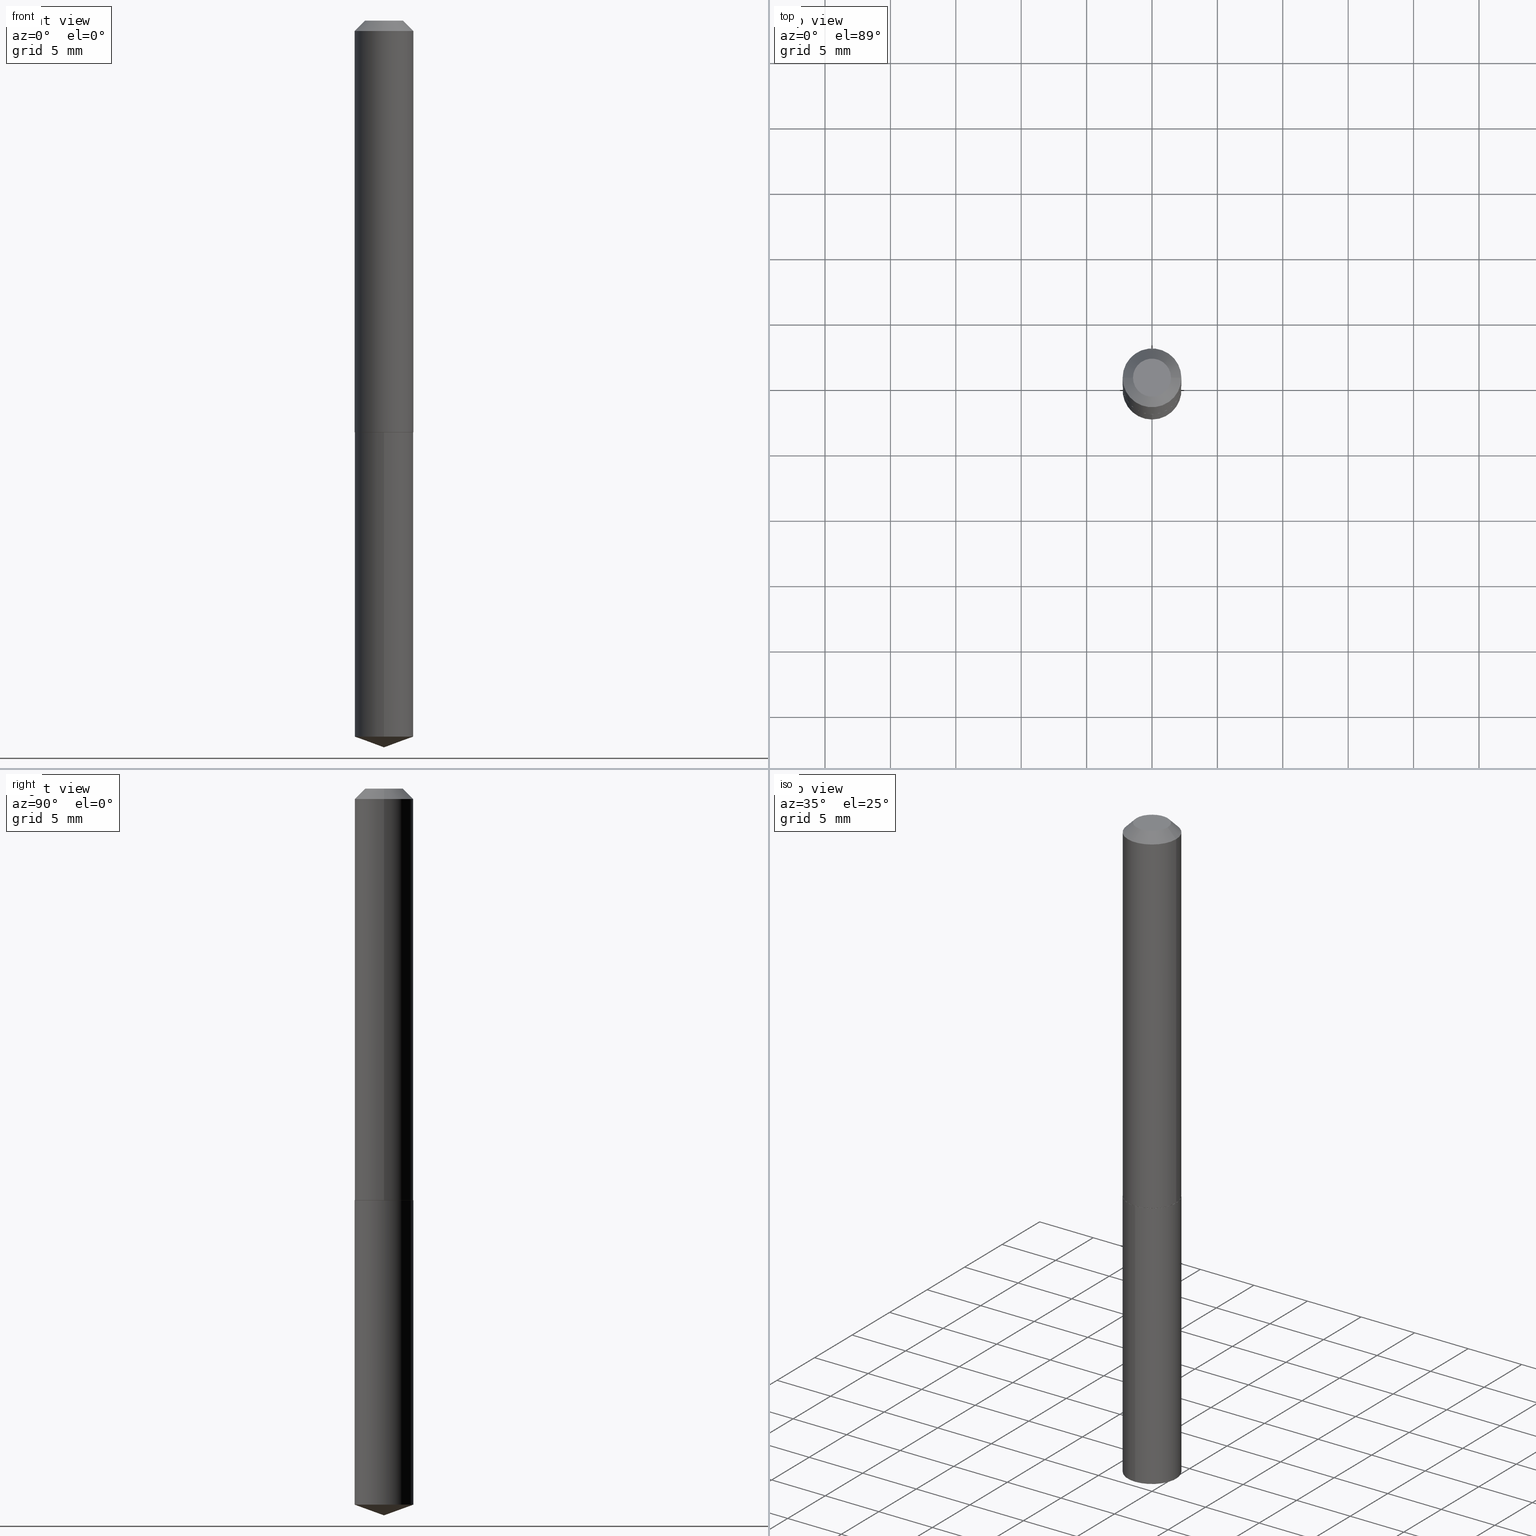
[diagram: canonical four-view strip — front | top / right | iso, engineering-drawing reading convention]
A machine part, canonical four-view strip (front | top / right | iso — engineering-drawing reading convention). The complete STEP part file that produces these views, byte-faithful:
ISO-10303-21;
HEADER;
FILE_DESCRIPTION (( 'STEP AP203' ),
    '1' );
FILE_NAME ('56225.STEP',
    '2024-04-22T21:07:29',
    ( '' ),
    ( '' ),
    'SwSTEP 2.0',
    'SolidWorks 2023',
    '' );
FILE_SCHEMA (( 'CONFIG_CONTROL_DESIGN' ));
ENDSEC;

DATA;
#1 = DATE_AND_TIME ( #169, #360 ) ;
#2 = CARTESIAN_POINT ( 'NONE',  ( 0.08849999999999999534, -7.162628646416295666E-16, -0.03125000000000020817 ) ) ;
#3 = EDGE_CURVE ( 'NONE', #74, #156, #312, .T. ) ;
#4 = APPROVAL_PERSON_ORGANIZATION ( #43, #199, #195 ) ;
#5 = APPLICATION_CONTEXT ( 'configuration controlled 3d designs of mechanical parts and assemblies' ) ;
#6 = CARTESIAN_POINT ( 'NONE',  ( 7.642090019328602662E-31, -1.091087918388490267E-16, -0.03125000000000020817 ) ) ;
#7 = CARTESIAN_POINT ( 'NONE',  ( 3.031158585266477520E-29, -4.327691119496080108E-15, -1.239500000000000268 ) ) ;
#8 = FACE_OUTER_BOUND ( 'NONE', #64, .T. ) ;
#9 = PLANE ( 'NONE',  #383 ) ;
#10 = AXIS2_PLACEMENT_3D ( 'NONE', #131, #41, #226 ) ;
#11 = FACE_OUTER_BOUND ( 'NONE', #44, .T. ) ;
#12 = EDGE_LOOP ( 'NONE', ( #188, #285, #279 ) ) ;
#13 = LINE ( 'NONE', #157, #26 ) ;
#14 = ADVANCED_FACE ( 'NONE', ( #109 ), #146, .T. ) ;
#15 = ORIENTED_EDGE ( 'NONE', *, *, #354, .T. ) ;
#16 =( NAMED_UNIT ( * ) SI_UNIT ( $, .STERADIAN. ) SOLID_ANGLE_UNIT ( ) );
#17 = AXIS2_PLACEMENT_3D ( 'NONE', #335, #380, #21 ) ;
#18 = ORIENTED_EDGE ( 'NONE', *, *, #238, .T. ) ;
#19 = COORDINATED_UNIVERSAL_TIME_OFFSET ( 5, 0, .BEHIND. ) ;
#20 = VERTEX_POINT ( 'NONE', #22 ) ;
#21 = DIRECTION ( 'NONE',  ( -6.982962677686269077E-15, -1.000000000000000000, 3.475157955500676827E-15 ) ) ;
#22 = CARTESIAN_POINT ( 'NONE',  ( -0.08800000000000013367, -3.699764284853079399E-15, -1.239500000000000046 ) ) ;
#23 = APPROVAL_STATUS ( 'not_yet_approved' ) ;
#24 = CIRCLE ( 'NONE', #288, 0.08849999999999999534 ) ;
#25 = CARTESIAN_POINT ( 'NONE',  ( 3.031158585266477520E-29, -4.327691119496080108E-15, -1.239500000000000268 ) ) ;
#26 = VECTOR ( 'NONE', #365, 39.37007874015748143 ) ;
#27 = DIRECTION ( 'NONE',  ( -6.982962677686269077E-15, -1.000000000000000000, 3.475157955500676827E-15 ) ) ;
#28 = LINE ( 'NONE', #2, #54 ) ;
#29 = PLANE ( 'NONE',  #351 ) ;
#30 = VECTOR ( 'NONE', #267, 39.37007874015748854 ) ;
#31 = CARTESIAN_POINT ( 'NONE',  ( 3.031158585266477520E-29, -4.327691119496080108E-15, -1.239500000000000268 ) ) ;
#32 = CARTESIAN_POINT ( 'NONE',  ( 0.08850000000000013411, -4.943937575801893744E-15, -1.239000000000000323 ) ) ;
#33 = EDGE_CURVE ( 'NONE', #156, #280, #65, .T. ) ;
#34 = CARTESIAN_POINT ( 'NONE',  ( 6.288303211477413864E-16, 0.08849999999999247358, -2.155288634267441772 ) ) ;
#35 = CLOSED_SHELL ( 'NONE', ( #108, #14, #381, #249, #389 ) ) ;
#36 = LINE ( 'NONE', #302, #207 ) ;
#37 = ORIENTED_EDGE ( 'NONE', *, *, #189, .T. ) ;
#38 = DIRECTION ( 'NONE',  ( -6.982962677686266711E-15, -1.000000000000000000, 3.086833891146060475E-15 ) ) ;
#39 = VERTEX_POINT ( 'NONE', #142 ) ;
#40 = ORIENTED_EDGE ( 'NONE', *, *, #51, .F. ) ;
#41 = DIRECTION ( 'NONE',  ( 2.445375697878233783E-29, -3.491614675238025661E-15, -1.000000000000000000 ) ) ;
#42 = DIRECTION ( 'NONE',  ( -6.561838499445211896E-15, -0.9396926207859088720, 0.3420201433256673251 ) ) ;
#43 = PERSON_AND_ORGANIZATION ( #174, #167 ) ;
#44 = EDGE_LOOP ( 'NONE', ( #227, #91 ) ) ;
#45 = EDGE_CURVE ( 'NONE', #215, #39, #24, .T. ) ;
#46 = APPROVAL_ROLE ( '' ) ;
#47 = DIRECTION ( 'NONE',  ( 1.000000000000000000, -6.982962677686261977E-15, 0.000000000000000000 ) ) ;
#48 = CARTESIAN_POINT ( 'NONE',  ( 0.000000000000000000, 0.000000000000000000, 0.000000000000000000 ) ) ;
#49 = AXIS2_PLACEMENT_3D ( 'NONE', #209, #78, #104 ) ;
#50 = PERSON_AND_ORGANIZATION ( #174, #167 ) ;
#51 = EDGE_CURVE ( 'NONE', #122, #20, #258, .T. ) ;
#52 = DATE_TIME_ROLE ( 'classification_date' ) ;
#53 = CARTESIAN_POINT ( 'NONE',  ( -0.08850000000000013411, -3.697115057678968987E-15, -1.239000000000000323 ) ) ;
#54 = VECTOR ( 'NONE', #210, 39.37007874015748143 ) ;
#55 = CC_DESIGN_APPROVAL ( #149, ( #320 ) ) ;
#56 = DIRECTION ( 'NONE',  ( -1.000000000000000000, 6.982962677686266711E-15, 0.000000000000000000 ) ) ;
#57 = FACE_OUTER_BOUND ( 'NONE', #314, .T. ) ;
#58 = DIRECTION ( 'NONE',  ( 1.000000000000000000, -6.982962677686266711E-15, 0.000000000000000000 ) ) ;
#59 = CONICAL_SURFACE ( 'NONE', #103, 0.08849999999999999534, 0.7853981633974449483 ) ;
#60 = FACE_OUTER_BOUND ( 'NONE', #162, .T. ) ;
#61 = CC_DESIGN_DATE_AND_TIME_ASSIGNMENT ( #359, #52, ( #153 ) ) ;
#62 = DIRECTION ( 'NONE',  ( -2.445468806185136597E-29, 3.491481338843145583E-15, 1.000000000000000000 ) ) ;
#63 = DIRECTION ( 'NONE',  ( 6.676917655467978384E-15, 0.9396926207859112035, 0.3420201433256607193 ) ) ;
#64 = EDGE_LOOP ( 'NONE', ( #375, #118, #18, #69 ) ) ;
#65 = CIRCLE ( 'NONE', #325, 0.08849999999999999534 ) ;
#66 = CARTESIAN_POINT ( 'NONE',  ( 5.349492178580865092E-29, -7.637576561160272770E-15, -2.187500000000000000 ) ) ;
#67 = ORIENTED_EDGE ( 'NONE', *, *, #304, .F. ) ;
#68 = CARTESIAN_POINT ( 'NONE',  ( -0.08850000000000013411, -3.697115057678968987E-15, -1.239000000000000323 ) ) ;
#69 = ORIENTED_EDGE ( 'NONE', *, *, #182, .F. ) ;
#70 =( LENGTH_UNIT ( ) NAMED_UNIT ( * ) SI_UNIT ( $, .METRE. ) );
#71 = EDGE_LOOP ( 'NONE', ( #284, #253 ) ) ;
#72 = AXIS2_PLACEMENT_3D ( 'NONE', #349, #132, #239 ) ;
#73 = ADVANCED_FACE ( 'NONE', ( #350 ), #357, .T. ) ;
#74 = VERTEX_POINT ( 'NONE', #140 ) ;
#75 = APPROVAL_DATE_TIME ( #137, #199 ) ;
#76 = DIRECTION ( 'NONE',  ( -2.445468806185136597E-29, 3.491481338843145583E-15, 1.000000000000000000 ) ) ;
#77 = EDGE_CURVE ( 'NONE', #342, #185, #252, .T. ) ;
#78 = DIRECTION ( 'NONE',  ( -2.445468806185136597E-29, 3.491481338843145583E-15, 1.000000000000000000 ) ) ;
#79 = CARTESIAN_POINT ( 'NONE',  ( 5.270605855897176758E-29, -7.525272154320466255E-15, -2.155288634267441772 ) ) ;
#80 = ADVANCED_FACE ( 'NONE', ( #363 ), #29, .F. ) ;
#81 = CIRCLE ( 'NONE', #358, 0.08849999999999999534 ) ;
#82 = ORIENTED_EDGE ( 'NONE', *, *, #99, .T. ) ;
#83 = AXIS2_PLACEMENT_3D ( 'NONE', #330, #76, #165 ) ;
#84 = FACE_OUTER_BOUND ( 'NONE', #256, .T. ) ;
#85 = DIRECTION ( 'NONE',  ( -2.445375697878234343E-29, 3.491614675238025267E-15, 1.000000000000000000 ) ) ;
#86 = CARTESIAN_POINT ( 'NONE',  ( -0.05724999999999999534, 4.543290092169620810E-16, -1.836970198750900287E-19 ) ) ;
#87 = LOCAL_TIME ( 17, 7, 29.00000000000000000, #346 ) ;
#88 = FACE_OUTER_BOUND ( 'NONE', #345, .T. ) ;
#89 = EDGE_LOOP ( 'NONE', ( #40, #67 ) ) ;
#90 = CARTESIAN_POINT ( 'NONE',  ( 7.642090019328602662E-31, -1.091087918388490267E-16, -0.03125000000000020817 ) ) ;
#91 = ORIENTED_EDGE ( 'NONE', *, *, #77, .T. ) ;
#92 = CARTESIAN_POINT ( 'NONE',  ( 3.031158585266476960E-29, -4.327691119496078530E-15, -1.239500000000000046 ) ) ;
#93 = ORIENTED_EDGE ( 'NONE', *, *, #51, .T. ) ;
#94 = LOCAL_TIME ( 17, 7, 29.00000000000000000, #283 ) ;
#95 = DIRECTION ( 'NONE',  ( -2.445375697878234343E-29, 3.491614675238025267E-15, 1.000000000000000000 ) ) ;
#96 = ORIENTED_EDGE ( 'NONE', *, *, #99, .F. ) ;
#97 = PERSON_AND_ORGANIZATION ( #174, #167 ) ;
#98 = EDGE_LOOP ( 'NONE', ( #370, #250, #37, #245 ) ) ;
#99 = EDGE_CURVE ( 'NONE', #218, #247, #123, .T. ) ;
#100 = DATE_AND_TIME ( #197, #87 ) ;
#101 = ORIENTED_EDGE ( 'NONE', *, *, #304, .T. ) ;
#102 = PLANE ( 'NONE',  #10 ) ;
#103 = AXIS2_PLACEMENT_3D ( 'NONE', #221, #187, #273 ) ;
#104 = DIRECTION ( 'NONE',  ( 1.000000000000000000, -6.982962677686261977E-15, 0.000000000000000000 ) ) ;
#105 = PERSON_AND_ORGANIZATION_ROLE ( 'design_supplier' ) ;
#106 = CARTESIAN_POINT ( 'NONE',  ( 3.031158585266476960E-29, -4.327691119496078530E-15, -1.239500000000000046 ) ) ;
#107 = PERSON_AND_ORGANIZATION_ROLE ( 'design_owner' ) ;
#108 = ADVANCED_FACE ( 'NONE', ( #84 ), #382, .T. ) ;
#109 = FACE_OUTER_BOUND ( 'NONE', #12, .T. ) ;
#110 = CARTESIAN_POINT ( 'NONE',  ( 6.288303211477413864E-16, 0.08849999999999566547, -1.239500000000000490 ) ) ;
#111 = DIRECTION ( 'NONE',  ( 1.000000000000000000, -6.982962677686266711E-15, 0.000000000000000000 ) ) ;
#112 = EDGE_CURVE ( 'NONE', #280, #160, #230, .T. ) ;
#113 = DIRECTION ( 'NONE',  ( -6.982962677686266711E-15, -1.000000000000000000, 3.086833891146060475E-15 ) ) ;
#114 = CARTESIAN_POINT ( 'NONE',  ( 0.05724999999999999534, -5.545131875070248356E-16, -1.836970198687676100E-19 ) ) ;
#115 = ORIENTED_EDGE ( 'NONE', *, *, #127, .F. ) ;
#116 = VECTOR ( 'NONE', #341, 39.37007874015748143 ) ;
#117 = DIRECTION ( 'NONE',  ( -2.445375697878234343E-29, 3.491614675238025267E-15, 1.000000000000000000 ) ) ;
#118 = ORIENTED_EDGE ( 'NONE', *, *, #234, .T. ) ;
#119 = CYLINDRICAL_SURFACE ( 'NONE', #228, 0.08849999999999999534 ) ;
#120 = EDGE_LOOP ( 'NONE', ( #299, #115, #143, #372 ) ) ;
#121 = FACE_OUTER_BOUND ( 'NONE', #337, .T. ) ;
#122 = VERTEX_POINT ( 'NONE', #176 ) ;
#123 = CIRCLE ( 'NONE', #49, 0.08850000000000013411 ) ;
#124 = AXIS2_PLACEMENT_3D ( 'NONE', #205, #328, #323 ) ;
#125 = DATE_TIME_ROLE ( 'creation_date' ) ;
#126 = CARTESIAN_POINT ( 'NONE',  ( 5.349259339108637853E-29, -7.637907102083180518E-15, -2.187500000000000000 ) ) ;
#127 = EDGE_CURVE ( 'NONE', #185, #342, #259, .T. ) ;
#128 = CC_DESIGN_DATE_AND_TIME_ASSIGNMENT ( #311, #125, ( #292 ) ) ;
#129 = APPLICATION_PROTOCOL_DEFINITION ( 'international standard', 'config_control_design', 1994, #5 ) ;
#130 = ORIENTED_EDGE ( 'NONE', *, *, #33, .T. ) ;
#131 = CARTESIAN_POINT ( 'NONE',  ( 3.031158585266477520E-29, -4.327691119496080108E-15, -1.239500000000000268 ) ) ;
#132 = DIRECTION ( 'NONE',  ( -2.445468806185136597E-29, 3.491481338843145583E-15, 1.000000000000000000 ) ) ;
#133 = AXIS2_PLACEMENT_3D ( 'NONE', #171, #265, #361 ) ;
#134 = PERSON_AND_ORGANIZATION ( #174, #167 ) ;
#135 = AXIS2_PLACEMENT_3D ( 'NONE', #7, #95, #113 ) ;
#136 = DIRECTION ( 'NONE',  ( -2.445375697878234343E-29, 3.491614675238025267E-15, 1.000000000000000000 ) ) ;
#137 = DATE_AND_TIME ( #286, #367 ) ;
#138 = EDGE_CURVE ( 'NONE', #20, #247, #173, .T. ) ;
#139 = AXIS2_PLACEMENT_3D ( 'NONE', #48, #387, #290 ) ;
#140 = CARTESIAN_POINT ( 'NONE',  ( 5.349259339108637853E-29, -7.637907102083180518E-15, -2.187500000000000000 ) ) ;
#141 = APPROVAL_DATE_TIME ( #1, #155 ) ;
#142 = CARTESIAN_POINT ( 'NONE',  ( 0.08849999999999999534, -7.271009888140835507E-16, -0.03125000000000020817 ) ) ;
#143 = ORIENTED_EDGE ( 'NONE', *, *, #263, .T. ) ;
#144 = CARTESIAN_POINT ( 'NONE',  ( 3.029935850863385279E-29, -4.325945378826658604E-15, -1.239000000000000323 ) ) ;
#145 = ADVANCED_FACE ( 'NONE', ( #206 ), #194, .T. ) ;
#146 = CONICAL_SURFACE ( 'NONE', #184, 108.1684023407348150, 1.221730476396035714 ) ;
#147 = ORIENTED_EDGE ( 'NONE', *, *, #238, .F. ) ;
#148 = DIRECTION ( 'NONE',  ( 1.000000000000000000, -6.982962677686266711E-15, 0.000000000000000000 ) ) ;
#149 = APPROVAL ( #23, 'UNSPECIFIED' ) ;
#150 = CARTESIAN_POINT ( 'NONE',  ( 0.000000000000000000, 0.000000000000000000, 0.000000000000000000 ) ) ;
#151 = CARTESIAN_POINT ( 'NONE',  ( 3.031158585266477520E-29, -4.327691119496080108E-15, -1.239500000000000268 ) ) ;
#152 = AXIS2_PLACEMENT_3D ( 'NONE', #106, #237, #111 ) ;
#153 = SECURITY_CLASSIFICATION ( '', '', #223 ) ;
#154 = LINE ( 'NONE', #246, #116 ) ;
#155 = APPROVAL ( #204, 'UNSPECIFIED' ) ;
#156 = VERTEX_POINT ( 'NONE', #178 ) ;
#157 = CARTESIAN_POINT ( 'NONE',  ( 0.08850000000000006473, -6.179921969752350417E-16, 4.315416446579406428E-30 ) ) ;
#158 = VERTEX_POINT ( 'NONE', #297 ) ;
#159 = LENGTH_MEASURE_WITH_UNIT ( LENGTH_MEASURE( 0.02539999999999999897 ), #70 );
#160 = VERTEX_POINT ( 'NONE', #110 ) ;
#161 = PERSON_AND_ORGANIZATION ( #174, #167 ) ;
#162 = EDGE_LOOP ( 'NONE', ( #82, #15, #379, #225 ) ) ;
#163 = ORIENTED_EDGE ( 'NONE', *, *, #138, .T. ) ;
#164 = EDGE_CURVE ( 'NONE', #342, #39, #28, .T. ) ;
#165 = DIRECTION ( 'NONE',  ( 1.000000000000000000, -6.982962677686266711E-15, 4.876176775795935793E-29 ) ) ;
#166 = APPROVAL_STATUS ( 'not_yet_approved' ) ;
#167 = ORGANIZATION ( 'UNSPECIFIED', 'UNSPECIFIED', '' ) ;
#168 = EDGE_CURVE ( 'NONE', #247, #218, #295, .T. ) ;
#169 = CALENDAR_DATE ( 2024, 22, 4 ) ;
#170 = ADVANCED_FACE ( 'NONE', ( #57 ), #269, .T. ) ;
#171 = CARTESIAN_POINT ( 'NONE',  ( 4.492253318864007917E-48, -6.413747168845486278E-34, -1.836970198721037058E-19 ) ) ;
#172 = VECTOR ( 'NONE', #366, 39.37007874015748854 ) ;
#173 = LINE ( 'NONE', #53, #30 ) ;
#174 = PERSON ( 'UNSPECIFIED', 'UNSPECIFIED', 'UNSPECIFIED', ('UNSPECIFIED'), ('UNSPECIFIED'), ('UNSPECIFIED') ) ;
#175 = COORDINATED_UNIVERSAL_TIME_OFFSET ( 5, 0, .BEHIND. ) ;
#176 = CARTESIAN_POINT ( 'NONE',  ( 0.08800000000000013367, -4.942191835132471452E-15, -1.239500000000000046 ) ) ;
#177 = ORIENTED_EDGE ( 'NONE', *, *, #324, .T. ) ;
#178 = CARTESIAN_POINT ( 'NONE',  ( -6.179921969751820894E-16, -0.08850000000000755873, -2.155288634267441328 ) ) ;
#179 = APPROVAL_PERSON_ORGANIZATION ( #50, #155, #266 ) ;
#180 = CYLINDRICAL_SURFACE ( 'NONE', #219, 0.08850000000000006473 ) ;
#181 = DIRECTION ( 'NONE',  ( -6.982962677686266711E-15, -1.000000000000000000, 3.086833891146060475E-15 ) ) ;
#182 = EDGE_CURVE ( 'NONE', #160, #158, #388, .T. ) ;
#183 = FACE_OUTER_BOUND ( 'NONE', #120, .T. ) ;
#184 = AXIS2_PLACEMENT_3D ( 'NONE', #356, #261, #27 ) ;
#185 = VERTEX_POINT ( 'NONE', #86 ) ;
#186 = AXIS2_PLACEMENT_3D ( 'NONE', #92, #241, #148 ) ;
#187 = DIRECTION ( 'NONE',  ( 2.445468806185136597E-29, -3.491481338843145583E-15, -1.000000000000000000 ) ) ;
#188 = ORIENTED_EDGE ( 'NONE', *, *, #3, .F. ) ;
#189 = EDGE_CURVE ( 'NONE', #39, #215, #81, .T. ) ;
#190 = PERSON_AND_ORGANIZATION_ROLE ( 'creator' ) ;
#191 = ORIENTED_EDGE ( 'NONE', *, *, #354, .F. ) ;
#192 = CC_DESIGN_PERSON_AND_ORGANIZATION_ASSIGNMENT ( #262, #190, ( #292 ) ) ;
#193 = ORIENTED_EDGE ( 'NONE', *, *, #203, .F. ) ;
#194 = CONICAL_SURFACE ( 'NONE', #333, 0.08849999999999999534, 0.7853981633974449483 ) ;
#195 = APPROVAL_ROLE ( '' ) ;
#196 = ORIENTED_EDGE ( 'NONE', *, *, #112, .T. ) ;
#197 = CALENDAR_DATE ( 2024, 22, 4 ) ;
#198 = DIRECTION ( 'NONE',  ( -6.982962677686266711E-15, -1.000000000000000000, 3.086833891146060475E-15 ) ) ;
#199 = APPROVAL ( #166, 'UNSPECIFIED' ) ;
#200 = FACE_OUTER_BOUND ( 'NONE', #71, .T. ) ;
#201 = APPROVAL_PERSON_ORGANIZATION ( #97, #149, #46 ) ;
#202 = DIMENSIONAL_EXPONENTS ( 1.000000000000000000, 0.000000000000000000, 0.000000000000000000, 0.000000000000000000, 0.000000000000000000, 0.000000000000000000, 0.000000000000000000 ) ;
#203 = EDGE_CURVE ( 'NONE', #74, #280, #303, .T. ) ;
#204 = APPROVAL_STATUS ( 'not_yet_approved' ) ;
#205 = CARTESIAN_POINT ( 'NONE',  ( 4.492253318864007917E-48, -6.413747168845486278E-34, -1.836970198721037058E-19 ) ) ;
#206 = FACE_OUTER_BOUND ( 'NONE', #98, .T. ) ;
#207 = VECTOR ( 'NONE', #336, 39.37007874015748143 ) ;
#208 = APPLICATION_CONTEXT ( 'configuration controlled 3d designs of mechanical parts and assemblies' ) ;
#209 = CARTESIAN_POINT ( 'NONE',  ( 3.029935850863385279E-29, -4.325945378826658604E-15, -1.239000000000000323 ) ) ;
#210 = DIRECTION ( 'NONE',  ( 0.7071067811865451302, -7.319954787623248157E-15, -0.7071067811865499042 ) ) ;
#211 = DIRECTION ( 'NONE',  ( -2.445468806185136877E-29, 3.491481338843145188E-15, 1.000000000000000000 ) ) ;
#212 =( GEOMETRIC_REPRESENTATION_CONTEXT ( 3 ) GLOBAL_UNCERTAINTY_ASSIGNED_CONTEXT ( ( #277 ) ) GLOBAL_UNIT_ASSIGNED_CONTEXT ( ( #315, #384, #16 ) ) REPRESENTATION_CONTEXT ( 'NONE', 'WORKASPACE' ) );
#213 = CARTESIAN_POINT ( 'NONE',  ( 5.270605855897176758E-29, -7.525272154320466255E-15, -2.155288634267441772 ) ) ;
#214 = DIRECTION ( 'NONE',  ( 1.000000000000000000, -6.982962677686261977E-15, 0.000000000000000000 ) ) ;
#215 = VERTEX_POINT ( 'NONE', #332 ) ;
#216 = CARTESIAN_POINT ( 'NONE',  ( 0.08850000000000013411, -4.943937575801893744E-15, -1.239000000000000323 ) ) ;
#217 = AXIS2_PLACEMENT_3D ( 'NONE', #144, #240, #47 ) ;
#218 = VERTEX_POINT ( 'NONE', #32 ) ;
#219 = AXIS2_PLACEMENT_3D ( 'NONE', #150, #272, #371 ) ;
#220 = ADVANCED_FACE ( 'NONE', ( #183 ), #59, .T. ) ;
#221 = CARTESIAN_POINT ( 'NONE',  ( 7.642090019328602662E-31, -1.091087918388490267E-16, -0.03125000000000020817 ) ) ;
#222 = ORIENTED_EDGE ( 'NONE', *, *, #45, .F. ) ;
#223 = SECURITY_CLASSIFICATION_LEVEL ( 'unclassified' ) ;
#224 = CC_DESIGN_PERSON_AND_ORGANIZATION_ASSIGNMENT ( #254, #105, ( #320 ) ) ;
#225 = ORIENTED_EDGE ( 'NONE', *, *, #324, .F. ) ;
#226 = DIRECTION ( 'NONE',  ( 6.982962677686265922E-15, 1.000000000000000000, -3.491614675238025661E-15 ) ) ;
#227 = ORIENTED_EDGE ( 'NONE', *, *, #127, .T. ) ;
#228 = AXIS2_PLACEMENT_3D ( 'NONE', #151, #271, #38 ) ;
#229 = CALENDAR_DATE ( 2024, 22, 4 ) ;
#230 = LINE ( 'NONE', #385, #301 ) ;
#231 = PERSON_AND_ORGANIZATION ( #174, #167 ) ;
#232 = DIRECTION ( 'NONE',  ( 1.000000000000000000, -6.982962677686265922E-15, 4.876176775795935793E-29 ) ) ;
#233 = MECHANICAL_CONTEXT ( 'NONE', #208, 'mechanical' ) ;
#234 = EDGE_CURVE ( 'NONE', #280, #156, #326, .T. ) ;
#235 = AXIS2_PLACEMENT_3D ( 'NONE', #25, #136, #198 ) ;
#236 = PRODUCT_DEFINITION_SHAPE ( 'NONE', 'NONE',  #292 ) ;
#237 = DIRECTION ( 'NONE',  ( -2.445468806185136597E-29, 3.491481338843145583E-15, 1.000000000000000000 ) ) ;
#238 = EDGE_CURVE ( 'NONE', #156, #158, #154, .T. ) ;
#239 = DIRECTION ( 'NONE',  ( 1.000000000000000000, -6.982962677686261977E-15, 0.000000000000000000 ) ) ;
#240 = DIRECTION ( 'NONE',  ( -2.445468806185136597E-29, 3.491481338843145583E-15, 1.000000000000000000 ) ) ;
#241 = DIRECTION ( 'NONE',  ( -2.445468806185136597E-29, 3.491481338843145583E-15, 1.000000000000000000 ) ) ;
#242 = LINE ( 'NONE', #216, #172 ) ;
#243 = CLOSED_SHELL ( 'NONE', ( #145, #362, #73, #80, #343, #170, #220, #291 ) ) ;
#244 = AXIS2_PLACEMENT_3D ( 'NONE', #251, #373, #214 ) ;
#245 = ORIENTED_EDGE ( 'NONE', *, *, #263, .F. ) ;
#246 = CARTESIAN_POINT ( 'NONE',  ( -6.179921969752041775E-16, -0.08850000000000431133, -1.239500000000000046 ) ) ;
#247 = VERTEX_POINT ( 'NONE', #68 ) ;
#248 = CARTESIAN_POINT ( 'NONE',  ( -0.08850000000000006473, 6.288303211476891244E-16, -4.353257554875594652E-30 ) ) ;
#249 = ADVANCED_FACE ( 'NONE', ( #8 ), #119, .T. ) ;
#250 = ORIENTED_EDGE ( 'NONE', *, *, #164, .T. ) ;
#251 = CARTESIAN_POINT ( 'NONE',  ( 3.029935850863385279E-29, -4.325945378826658604E-15, -1.239000000000000323 ) ) ;
#252 = CIRCLE ( 'NONE', #133, 0.05724999999999999534 ) ;
#253 = ORIENTED_EDGE ( 'NONE', *, *, #182, .T. ) ;
#254 = PERSON_AND_ORGANIZATION ( #174, #167 ) ;
#255 = ORIENTED_EDGE ( 'NONE', *, *, #319, .F. ) ;
#256 = EDGE_LOOP ( 'NONE', ( #130, #196, #255, #147 ) ) ;
#257 = DIRECTION ( 'NONE',  ( -2.445375697878234063E-29, 3.491614675238025661E-15, 1.000000000000000000 ) ) ;
#258 = CIRCLE ( 'NONE', #152, 0.08800000000000013367 ) ;
#259 = CIRCLE ( 'NONE', #124, 0.05724999999999999534 ) ;
#260 = PERSON_AND_ORGANIZATION_ROLE ( 'creator' ) ;
#261 = DIRECTION ( 'NONE',  ( -2.445375697878234343E-29, 3.491614675238025267E-15, 1.000000000000000000 ) ) ;
#262 = PERSON_AND_ORGANIZATION ( #174, #167 ) ;
#263 = EDGE_CURVE ( 'NONE', #185, #215, #36, .T. ) ;
#264 = CIRCLE ( 'NONE', #135, 0.08849999999999999534 ) ;
#265 = DIRECTION ( 'NONE',  ( -2.445468806185136597E-29, 3.491481338843145583E-15, 1.000000000000000000 ) ) ;
#266 = APPROVAL_ROLE ( '' ) ;
#267 = DIRECTION ( 'NONE',  ( -0.7071067811868130271, 7.493145998871311837E-15, 0.7071067811862817853 ) ) ;
#268 = CC_DESIGN_PERSON_AND_ORGANIZATION_ASSIGNMENT ( #134, #260, ( #320 ) ) ;
#269 = CYLINDRICAL_SURFACE ( 'NONE', #83, 0.08850000000000006473 ) ;
#270 = CC_DESIGN_APPROVAL ( #199, ( #292 ) ) ;
#271 = DIRECTION ( 'NONE',  ( -2.445375697878234343E-29, 3.491614675238025267E-15, 1.000000000000000000 ) ) ;
#272 = DIRECTION ( 'NONE',  ( -2.445468806185136597E-29, 3.491481338843145583E-15, 1.000000000000000000 ) ) ;
#273 = DIRECTION ( 'NONE',  ( -1.000000000000000000, 6.982962677686266711E-15, 0.000000000000000000 ) ) ;
#274 = AXIS2_PLACEMENT_3D ( 'NONE', #31, #117, #278 ) ;
#275 = LINE ( 'NONE', #248, #348 ) ;
#276 = ORIENTED_EDGE ( 'NONE', *, *, #3, .T. ) ;
#277 = UNCERTAINTY_MEASURE_WITH_UNIT (LENGTH_MEASURE( 1.000000000000000082E-05 ), #315, 'distance_accuracy_value', 'NONE');
#278 = DIRECTION ( 'NONE',  ( -6.982962677686266711E-15, -1.000000000000000000, 3.086833891146060475E-15 ) ) ;
#279 = ORIENTED_EDGE ( 'NONE', *, *, #33, .F. ) ;
#280 = VERTEX_POINT ( 'NONE', #34 ) ;
#281 = AXIS2_PLACEMENT_3D ( 'NONE', #213, #305, #181 ) ;
#282 = CC_DESIGN_SECURITY_CLASSIFICATION ( #153, ( #320 ) ) ;
#283 = COORDINATED_UNIVERSAL_TIME_OFFSET ( 5, 0, .BEHIND. ) ;
#284 = ORIENTED_EDGE ( 'NONE', *, *, #319, .T. ) ;
#285 = ORIENTED_EDGE ( 'NONE', *, *, #203, .T. ) ;
#286 = CALENDAR_DATE ( 2024, 22, 4 ) ;
#287 = DIRECTION ( 'NONE',  ( -6.982962677686266711E-15, -1.000000000000000000, 3.086833891146060475E-15 ) ) ;
#288 = AXIS2_PLACEMENT_3D ( 'NONE', #6, #296, #58 ) ;
#289 = CC_DESIGN_APPROVAL ( #155, ( #153 ) ) ;
#290 = DIRECTION ( 'NONE',  ( 1.000000000000000000, 0.000000000000000000, 0.000000000000000000 ) ) ;
#291 = ADVANCED_FACE ( 'NONE', ( #11 ), #9, .F. ) ;
#292 = PRODUCT_DEFINITION ( 'UNKNOWN', '', #320, #377 ) ;
#293 = COORDINATED_UNIVERSAL_TIME_OFFSET ( 5, 0, .BEHIND. ) ;
#294 = VECTOR ( 'NONE', #42, 39.37007874015748143 ) ;
#295 = CIRCLE ( 'NONE', #72, 0.08850000000000013411 ) ;
#296 = DIRECTION ( 'NONE',  ( -2.445468806185136597E-29, 3.491481338843145583E-15, 1.000000000000000000 ) ) ;
#297 = CARTESIAN_POINT ( 'NONE',  ( -6.179921969752041775E-16, -0.08850000000000431133, -1.239500000000000046 ) ) ;
#298 = CARTESIAN_POINT ( 'NONE',  ( 5.718111835719648337E-29, -4.798211329655697004E-16, -1.239500000000000268 ) ) ;
#299 = ORIENTED_EDGE ( 'NONE', *, *, #164, .F. ) ;
#300 = CARTESIAN_POINT ( 'NONE',  ( 2.246126659432003959E-48, -3.206873584422743139E-34, -9.184850993605185290E-20 ) ) ;
#301 = VECTOR ( 'NONE', #257, 39.37007874015748143 ) ;
#302 = CARTESIAN_POINT ( 'NONE',  ( -0.08849999999999999534, 5.088834051363855466E-16, -0.03125000000000020817 ) ) ;
#303 = LINE ( 'NONE', #66, #307 ) ;
#304 = EDGE_CURVE ( 'NONE', #20, #122, #306, .T. ) ;
#305 = DIRECTION ( 'NONE',  ( -2.445375697878234343E-29, 3.491614675238025267E-15, 1.000000000000000000 ) ) ;
#306 = CIRCLE ( 'NONE', #186, 0.08800000000000013367 ) ;
#307 = VECTOR ( 'NONE', #63, 39.37007874015748854 ) ;
#308 = EDGE_LOOP ( 'NONE', ( #93, #163, #96, #316 ) ) ;
#309 = DIRECTION ( 'NONE',  ( 2.438088387897960049E-29, -3.491481338843145188E-15, -1.000000000000000000 ) ) ;
#310 = ORIENTED_EDGE ( 'NONE', *, *, #168, .T. ) ;
#311 = DATE_AND_TIME ( #229, #94 ) ;
#312 = LINE ( 'NONE', #126, #294 ) ;
#313 = APPLICATION_PROTOCOL_DEFINITION ( 'international standard', 'config_control_design', 1994, #208 ) ;
#314 = EDGE_LOOP ( 'NONE', ( #191, #310, #177, #222 ) ) ;
#315 =( CONVERSION_BASED_UNIT ( 'INCH', #159 ) LENGTH_UNIT ( ) NAMED_UNIT ( #202 ) );
#316 = ORIENTED_EDGE ( 'NONE', *, *, #378, .F. ) ;
#317 = APPROVAL_DATE_TIME ( #100, #149 ) ;
#318 = CARTESIAN_POINT ( 'NONE',  ( 7.642090019328602662E-31, -1.091087918388490267E-16, -0.03125000000000020817 ) ) ;
#319 = EDGE_CURVE ( 'NONE', #158, #160, #264, .T. ) ;
#320 = PRODUCT_DEFINITION_FORMATION_WITH_SPECIFIED_SOURCE ( 'ANY', '', #322, .NOT_KNOWN. ) ;
#321 = CALENDAR_DATE ( 2024, 22, 4 ) ;
#322 = PRODUCT ( '56225', '56225', '', ( #233 ) ) ;
#323 = DIRECTION ( 'NONE',  ( 1.000000000000000000, -6.982962677686265922E-15, 4.876152498572012658E-29 ) ) ;
#324 = EDGE_CURVE ( 'NONE', #218, #39, #13, .T. ) ;
#325 = AXIS2_PLACEMENT_3D ( 'NONE', #79, #85, #287 ) ;
#326 = CIRCLE ( 'NONE', #281, 0.08849999999999999534 ) ;
#327 = DIRECTION ( 'NONE',  ( 2.445468806185136597E-29, -3.491481338843145583E-15, -1.000000000000000000 ) ) ;
#328 = DIRECTION ( 'NONE',  ( -2.445468806185136597E-29, 3.491481338843145583E-15, 1.000000000000000000 ) ) ;
#329 = MANIFOLD_SOLID_BREP ( 'Body-Move/Copy2[1]', #35 ) ;
#330 = CARTESIAN_POINT ( 'NONE',  ( 0.000000000000000000, 0.000000000000000000, 0.000000000000000000 ) ) ;
#331 = MANIFOLD_SOLID_BREP ( 'Body-Move/Copy2[2]', #243 ) ;
#332 = CARTESIAN_POINT ( 'NONE',  ( -0.08849999999999999534, -1.588696764185064235E-15, -0.03125000000000020817 ) ) ;
#333 = AXIS2_PLACEMENT_3D ( 'NONE', #318, #327, #56 ) ;
#334 = LOCAL_TIME ( 17, 7, 29.00000000000000000, #175 ) ;
#335 = CARTESIAN_POINT ( 'NONE',  ( -9.092525902787859625E-28, 1.298274028627887223E-13, 37.18257874015748143 ) ) ;
#336 = DIRECTION ( 'NONE',  ( -0.7071067811865451302, 2.468850131082231817E-15, -0.7071067811865499042 ) ) ;
#337 = EDGE_LOOP ( 'NONE', ( #347, #101, #340, #376 ) ) ;
#338 = PRODUCT_RELATED_PRODUCT_CATEGORY ( 'detail', '', ( #322 ) ) ;
#339 = DIRECTION ( 'NONE',  ( 1.000000000000000000, -6.982962677686266711E-15, 0.000000000000000000 ) ) ;
#340 = ORIENTED_EDGE ( 'NONE', *, *, #378, .T. ) ;
#341 = DIRECTION ( 'NONE',  ( -2.445375697878234063E-29, 3.491614675238025661E-15, 1.000000000000000000 ) ) ;
#342 = VERTEX_POINT ( 'NONE', #114 ) ;
#343 = ADVANCED_FACE ( 'NONE', ( #121 ), #374, .T. ) ;
#344 = PERSON_AND_ORGANIZATION_ROLE ( 'classification_officer' ) ;
#345 = EDGE_LOOP ( 'NONE', ( #193, #276, #368 ) ) ;
#346 = COORDINATED_UNIVERSAL_TIME_OFFSET ( 5, 0, .BEHIND. ) ;
#347 = ORIENTED_EDGE ( 'NONE', *, *, #138, .F. ) ;
#348 = VECTOR ( 'NONE', #211, 39.37007874015748143 ) ;
#349 = CARTESIAN_POINT ( 'NONE',  ( 3.029935850863385279E-29, -4.325945378826658604E-15, -1.239000000000000323 ) ) ;
#350 = FACE_OUTER_BOUND ( 'NONE', #308, .T. ) ;
#351 = AXIS2_PLACEMENT_3D ( 'NONE', #298, #390, #232 ) ;
#352 = CONICAL_SURFACE ( 'NONE', #17, 108.1684023407348150, 1.221730476396035714 ) ;
#353 = SHAPE_DEFINITION_REPRESENTATION ( #236, #364 ) ;
#354 = EDGE_CURVE ( 'NONE', #247, #215, #275, .T. ) ;
#355 = CC_DESIGN_PERSON_AND_ORGANIZATION_ASSIGNMENT ( #231, #344, ( #153 ) ) ;
#356 = CARTESIAN_POINT ( 'NONE',  ( -9.092525902787859625E-28, 1.298274028627887223E-13, 37.18257874015748143 ) ) ;
#357 = CONICAL_SURFACE ( 'NONE', #217, 0.08850000000000013411, 0.7853981633978239785 ) ;
#358 = AXIS2_PLACEMENT_3D ( 'NONE', #90, #62, #339 ) ;
#359 = DATE_AND_TIME ( #321, #334 ) ;
#360 = LOCAL_TIME ( 17, 7, 29.00000000000000000, #293 ) ;
#361 = DIRECTION ( 'NONE',  ( 1.000000000000000000, -6.982962677686265922E-15, 4.876152498572012658E-29 ) ) ;
#362 = ADVANCED_FACE ( 'NONE', ( #60 ), #180, .T. ) ;
#363 = FACE_OUTER_BOUND ( 'NONE', #89, .T. ) ;
#364 = ADVANCED_BREP_SHAPE_REPRESENTATION ( '56225', ( #329, #331, #139 ), #212 ) ;
#365 = DIRECTION ( 'NONE',  ( -2.445468806185136877E-29, 3.491481338843145188E-15, 1.000000000000000000 ) ) ;
#366 = DIRECTION ( 'NONE',  ( 0.7071067811868130271, -2.468850131085038979E-15, 0.7071067811862817853 ) ) ;
#367 = LOCAL_TIME ( 17, 7, 29.00000000000000000, #19 ) ;
#368 = ORIENTED_EDGE ( 'NONE', *, *, #234, .F. ) ;
#369 = DIRECTION ( 'NONE',  ( -1.000000000000000000, 6.982962677686265922E-15, -4.876176775795935793E-29 ) ) ;
#370 = ORIENTED_EDGE ( 'NONE', *, *, #77, .F. ) ;
#371 = DIRECTION ( 'NONE',  ( 1.000000000000000000, -6.982962677686266711E-15, 4.876176775795935793E-29 ) ) ;
#372 = ORIENTED_EDGE ( 'NONE', *, *, #45, .T. ) ;
#373 = DIRECTION ( 'NONE',  ( -2.445468806185136597E-29, 3.491481338843145583E-15, 1.000000000000000000 ) ) ;
#374 = CONICAL_SURFACE ( 'NONE', #244, 0.08850000000000013411, 0.7853981633978239785 ) ;
#375 = ORIENTED_EDGE ( 'NONE', *, *, #112, .F. ) ;
#376 = ORIENTED_EDGE ( 'NONE', *, *, #168, .F. ) ;
#377 = DESIGN_CONTEXT ( 'detailed design', #5, 'design' ) ;
#378 = EDGE_CURVE ( 'NONE', #122, #218, #242, .T. ) ;
#379 = ORIENTED_EDGE ( 'NONE', *, *, #189, .F. ) ;
#380 = DIRECTION ( 'NONE',  ( -2.445375697878234343E-29, 3.491614675238025267E-15, 1.000000000000000000 ) ) ;
#381 = ADVANCED_FACE ( 'NONE', ( #88 ), #352, .T. ) ;
#382 = CYLINDRICAL_SURFACE ( 'NONE', #235, 0.08849999999999999534 ) ;
#383 = AXIS2_PLACEMENT_3D ( 'NONE', #300, #309, #369 ) ;
#384 =( NAMED_UNIT ( * ) PLANE_ANGLE_UNIT ( ) SI_UNIT ( $, .RADIAN. ) );
#385 = CARTESIAN_POINT ( 'NONE',  ( 6.288303211477188053E-16, 0.08849999999999566547, -1.239500000000000490 ) ) ;
#386 = CC_DESIGN_PERSON_AND_ORGANIZATION_ASSIGNMENT ( #161, #107, ( #322 ) ) ;
#387 = DIRECTION ( 'NONE',  ( 0.000000000000000000, 0.000000000000000000, 1.000000000000000000 ) ) ;
#388 = CIRCLE ( 'NONE', #274, 0.08849999999999999534 ) ;
#389 = ADVANCED_FACE ( 'NONE', ( #200 ), #102, .F. ) ;
#390 = DIRECTION ( 'NONE',  ( -2.438088387897960049E-29, 3.491481338843145188E-15, 1.000000000000000000 ) ) ;
ENDSEC;
END-ISO-10303-21;
